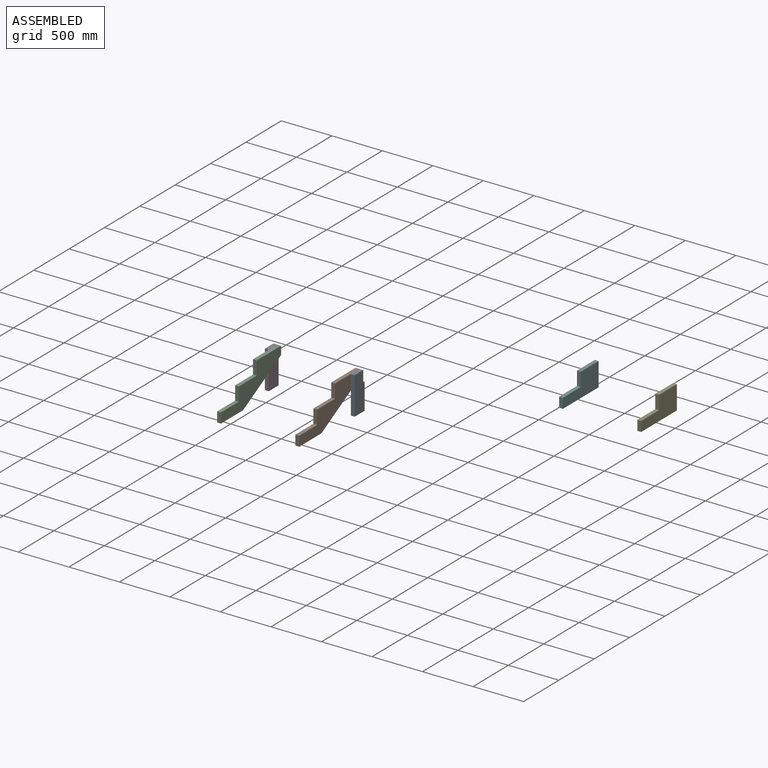
[diagram: assembled view]
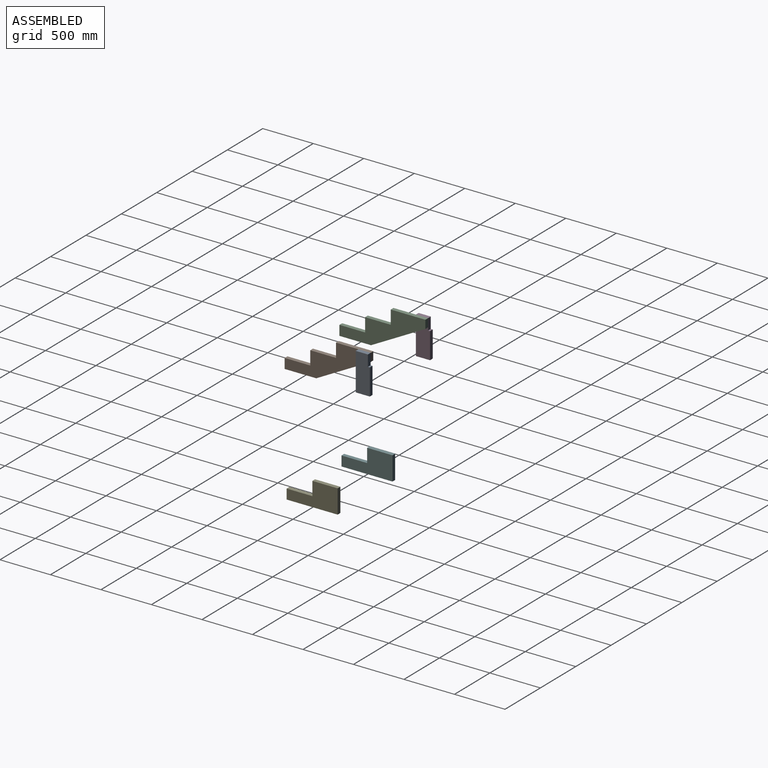
[diagram: assembled view, second angle]
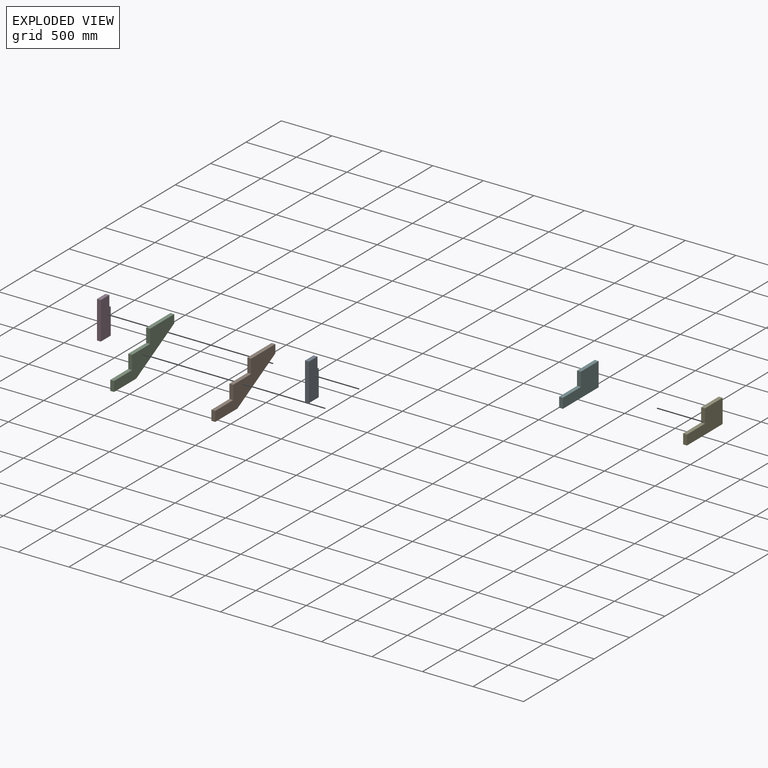
[diagram: exploded view]
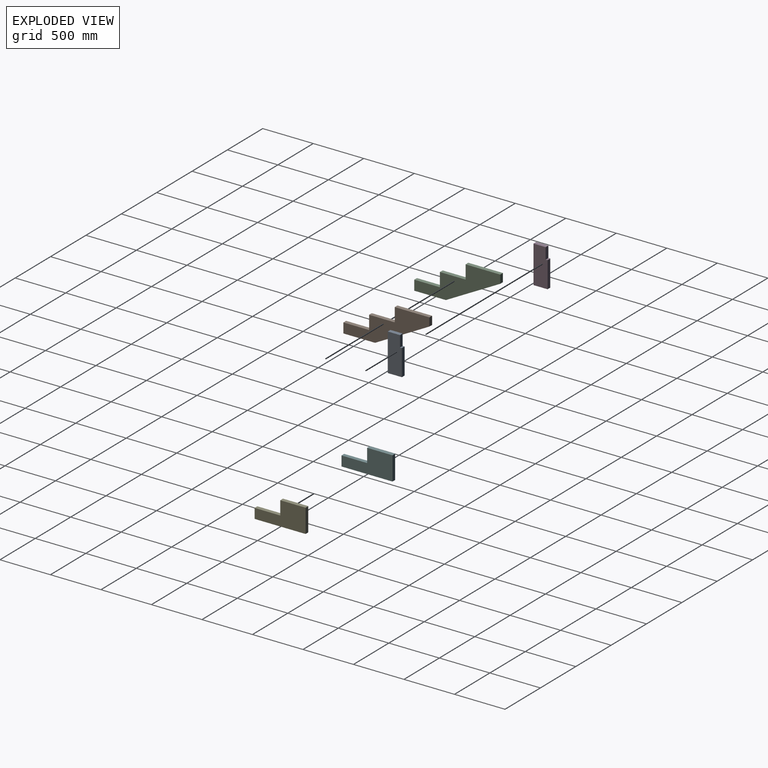
[diagram: exploded view, second angle]
ASSEMBLY  parts=6 mates=2
PART A: 8 faces, bbox 38.1x139.7x371.5 mm
  f0: plane 120.65x38.1mm, normal (0,0,1), area 4596.8mm2, adj f1,f5,f6,f7
  f1: plane 371.48x38.1mm, normal (0,-1,0), area 14153.2mm2, adj f0,f2,f6,f7
  f2: plane 139.7x38.1mm, normal (0,0,-1), area 5322.6mm2, adj f1,f3,f6,f7
  f3: plane 260.35x38.1mm, normal (0,1,0), area 9919.3mm2, adj f2,f4,f6,f7
  f4: plane 38.1x19.05mm, normal (0,0,1), area 725.8mm2, adj f3,f5,f6,f7
  f5: plane 111.13x38.1mm, normal (0,1,0), area 4233.9mm2, adj f0,f4,f6,f7
  f6: plane 371.48x139.7mm, normal (1,0,0), area 49778.1mm2, adj f0,f1,f2,f3,f4,f5
  f7: plane 371.48x139.7mm, normal (-1,0,0), area 49778.1mm2, adj f0,f1,f2,f3,f4,f5
PART B: 11 faces, bbox 38.1x850.9x371.5 mm
  f0: plane 98.43x38.1mm, normal (0,-1,0), area 3750mm2, adj f1,f8,f9,f10
  f1: plane 313.14x38.1mm, normal (0,0,-1), area 11930.7mm2, adj f0,f2,f9,f10
  f2: plane 537.76x289.05mm, normal (0,0.47,-0.88), area 23260.7mm2, adj f1,f3,f9,f10
  f3: plane 82.43x38.1mm, normal (0,1,0), area 3140.6mm2, adj f2,f4,f9,f10
  f4: plane 342.9x38.1mm, normal (0,0,1), area 13064.5mm2, adj f3,f5,f9,f10
  f5: plane 136.53x38.1mm, normal (0,-1,0), area 5201.6mm2, adj f4,f6,f9,f10
  f6: plane 254x38.1mm, normal (0,0,1), area 9677.4mm2, adj f5,f7,f9,f10
  f7: plane 136.53x38.1mm, normal (0,-1,0), area 5201.6mm2, adj f6,f8,f9,f10
  f8: plane 254x38.1mm, normal (0,0,1), area 9677.4mm2, adj f0,f7,f9,f10
  f9: plane 850.9x371.48mm, normal (1,0,0), area 134337.9mm2, adj f0,f1,f2,f3,f4,f5,f6,f7
  f10: plane 850.9x371.48mm, normal (-1,0,0), area 134337.9mm2, adj f0,f1,f2,f3,f4,f5,f6,f7
PART C: same geometry as B
PART D: same geometry as A
PART E: 8 faces, bbox 38.1x504.8x235 mm
  f0: plane 98.43x38.1mm, normal (0,-1,0), area 3750mm2, adj f1,f5,f6,f7
  f1: plane 504.83x38.1mm, normal (0,0,-1), area 19233.8mm2, adj f0,f2,f6,f7
  f2: plane 234.95x38.1mm, normal (0,1,0), area 8951.6mm2, adj f1,f3,f6,f7
  f3: plane 250.83x38.1mm, normal (0,0,1), area 9556.4mm2, adj f2,f4,f6,f7
  f4: plane 136.53x38.1mm, normal (0,-1,0), area 5201.6mm2, adj f3,f5,f6,f7
  f5: plane 254x38.1mm, normal (0,0,1), area 9677.4mm2, adj f0,f4,f6,f7
  f6: plane 504.83x234.95mm, normal (1,0,0), area 83931.3mm2, adj f0,f1,f2,f3,f4,f5
  f7: plane 504.83x234.95mm, normal (-1,0,0), area 83931.3mm2, adj f0,f1,f2,f3,f4,f5
PART F: same geometry as E
PLACE A t=(-2223.86,-1595.62,145.59)mm
PLACE B t=(-2261.96,-1604.04,-124.4)mm
PLACE C t=(-3036.66,-1604.04,-124.4)mm
PLACE D t=(-3074.76,-1595.62,145.59)mm
PLACE E at identity
PLACE F t=(-774.7,0,0)mm
MATE fastened B.f9 <-> A.f7  axis (1,0,0) through (-2223.86,-1287.94,87.05)mm
MATE fastened D.f6 <-> C.f10  axis (-1,0,0) through (-3036.66,-1287.94,87.05)mm
